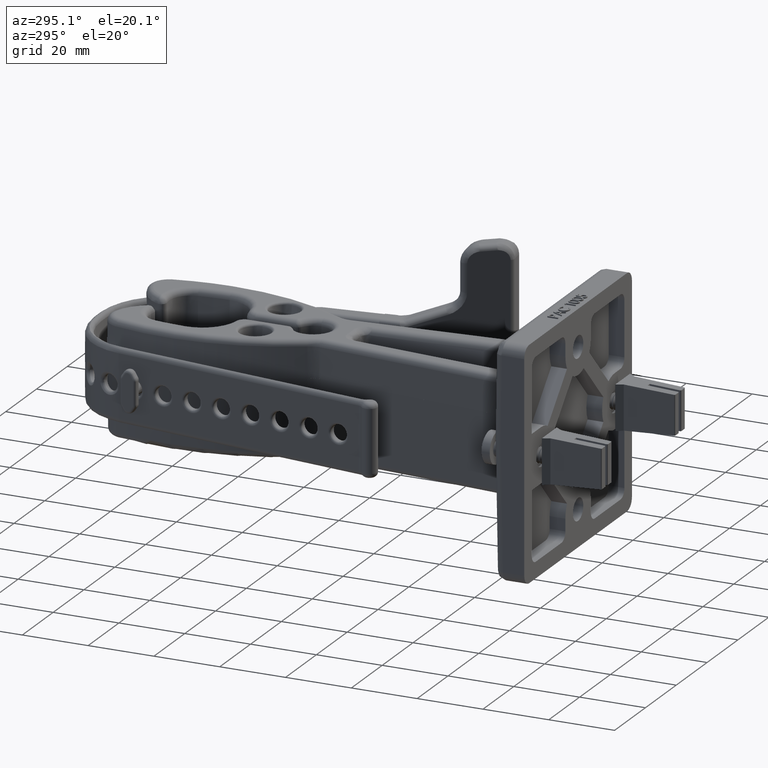
[diagram: clean part render]
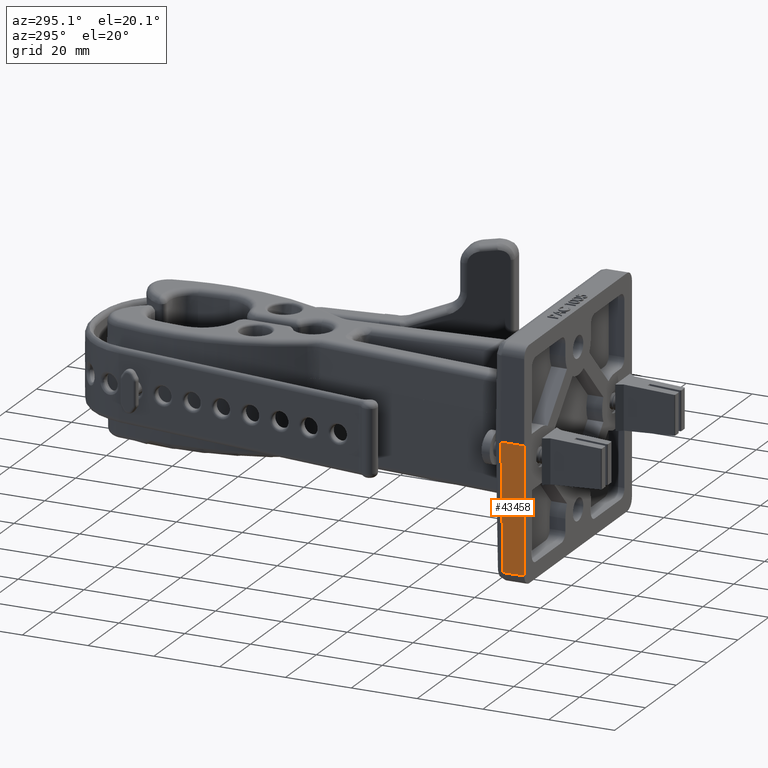
[diagram: same view with one face highlighted and labeled with its STEP entity id]
A machine part, auxiliary view. The second image highlights one B-rep face of the part: STEP entity #43458.
In plain terms, the highlighted planar face has unit normal (1, 0, 0).
Its self-contained STEP definition (entity closure, byte-faithful):
#227 = ORIENTED_EDGE ( 'NONE', *, *, #43838, .F. ) ;
#228 = ORIENTED_EDGE ( 'NONE', *, *, #43831, .F. ) ;
#229 = ORIENTED_EDGE ( 'NONE', *, *, #43833, .T. ) ;
#230 = ORIENTED_EDGE ( 'NONE', *, *, #43836, .T. ) ;
#10637 = CARTESIAN_POINT ( 'NONE',  ( -1.374999999999999800, -0.2187642807541163900, 0.2500000000000000000 ) ) ;
#10638 = CARTESIAN_POINT ( 'NONE',  ( -1.374999999999999800, -0.5000000000000000000, 0.2500000000000000000 ) ) ;
#10640 = CARTESIAN_POINT ( 'NONE',  ( -1.374999999999999800, -0.5000000000000000000, -1.250000000000000000 ) ) ;
#10641 = CARTESIAN_POINT ( 'NONE',  ( -1.374999999999999800, -0.2449468781464428900, -1.250000000000000000 ) ) ;
#23216 = VERTEX_POINT ( 'NONE', #10637 ) ;
#23217 = VERTEX_POINT ( 'NONE', #10638 ) ;
#23219 = VERTEX_POINT ( 'NONE', #10640 ) ;
#23220 = VERTEX_POINT ( 'NONE', #10641 ) ;
#27733 = CARTESIAN_POINT ( 'NONE',  ( -1.374999999999999800, -0.5000000000000000000, 0.6875000000000000000 ) ) ;
#27738 = PLANE ( 'NONE',  #29819 ) ;
#27743 = DIRECTION ( 'NONE',  ( 1.000000000000000000, 0.0000000000000000000, 0.0000000000000000000 ) ) ;
#27744 = DIRECTION ( 'NONE',  ( 0.0000000000000000000, 0.0000000000000000000, -1.000000000000000000 ) ) ;
#28908 = FACE_OUTER_BOUND ( 'NONE', #48451, .T. ) ;
#29442 = LINE ( 'NONE', #34291, #29450 ) ;
#29447 = LINE ( 'NONE', #34309, #29448 ) ;
#29448 = VECTOR ( 'NONE', #34311, 39.37007874015748100 ) ;
#29450 = VECTOR ( 'NONE', #34300, 39.37007874015748100 ) ;
#29451 = LINE ( 'NONE', #34313, #29462 ) ;
#29458 = LINE ( 'NONE', #34324, #29459 ) ;
#29459 = VECTOR ( 'NONE', #34326, 39.37007874015748100 ) ;
#29462 = VECTOR ( 'NONE', #34336, 39.37007874015748100 ) ;
#29819 = AXIS2_PLACEMENT_3D ( 'NONE', #27733, #27743, #27744 ) ;
#34291 = CARTESIAN_POINT ( 'NONE',  ( -1.374999999999999800, -0.5000000000000000000, 0.2500000000000000000 ) ) ;
#34300 = DIRECTION ( 'NONE',  ( 0.0000000000000000000, -1.000000000000000000, 0.0000000000000000000 ) ) ;
#34309 = CARTESIAN_POINT ( 'NONE',  ( -1.374999999999999800, -0.2112156764511591600, 0.6824592508822036100 ) ) ;
#34311 = DIRECTION ( 'NONE',  ( 0.0000000000000000000, -0.01745240643728355000, -0.9998476951563912700 ) ) ;
#34313 = CARTESIAN_POINT ( 'NONE',  ( -1.374999999999999800, -0.5000000000000000000, 0.6875000000000000000 ) ) ;
#34324 = CARTESIAN_POINT ( 'NONE',  ( -1.374999999999999800, -0.5000000000000000000, -1.250000000000000000 ) ) ;
#34326 = DIRECTION ( 'NONE',  ( -0.0000000000000000000, -1.000000000000000000, 0.0000000000000000000 ) ) ;
#34336 = DIRECTION ( 'NONE',  ( -0.0000000000000000000, -0.0000000000000000000, -1.000000000000000000 ) ) ;
#43458 = ADVANCED_FACE ( 'NONE', ( #28908 ), #27738, .F. ) ;
#43831 = EDGE_CURVE ( 'NONE', #23216, #23217, #29442, .T. ) ;
#43833 = EDGE_CURVE ( 'NONE', #23216, #23220, #29447, .T. ) ;
#43836 = EDGE_CURVE ( 'NONE', #23220, #23219, #29458, .T. ) ;
#43838 = EDGE_CURVE ( 'NONE', #23217, #23219, #29451, .T. ) ;
#48451 = EDGE_LOOP ( 'NONE', ( #227, #228, #229, #230 ) ) ;